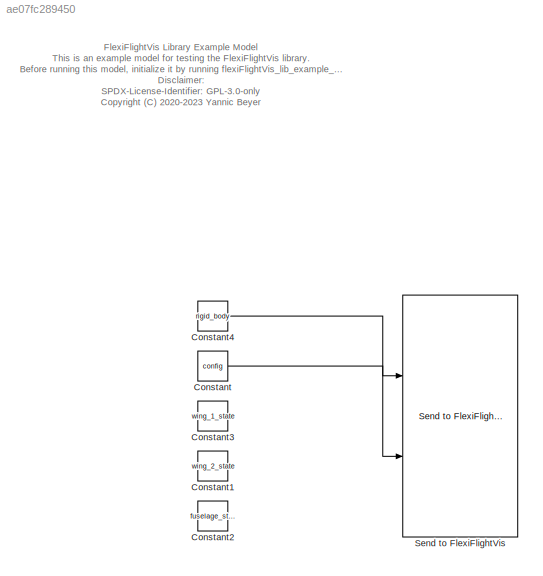
MODEL slx_ae07fc289450
KIND model
CONFIG AbsTol = auto
CONFIG EnableMultiTasking = off
CONFIG FixedStep = 1/60
CONFIG MaxStep = auto
CONFIG MinStep = auto
CONFIG RelTol = 1e-3
CONFIG SampleTimeConstraint = Unconstrained
CONFIG Solver = ode2
CONFIG SolverName = ode2
CONFIG StartTime = 0.0
CONFIG StopTime = 100
BLOCK [Constant] Constant
  OutDataTypeStr = Bus: config_bus
  Value = config
BLOCK [Constant] Constant1
  OutDataTypeStr = Bus: wing_2_state_bus
  Value = wing_2_state
BLOCK [Constant] Constant2
  OutDataTypeStr = Bus: fuselage_state_bus
  Value = fuselage_state
BLOCK [Constant] Constant3
  OutDataTypeStr = Bus: wing_1_state_bus
  Value = wing_1_state
BLOCK [Constant] Constant4
  OutDataTypeStr = Bus: rigid_body_bus
  Value = rigid_body
BLOCK [Reference] Send to FlexiFlightVis  REF=flexiFlightVis_lib/Send to FlexiFlightVis
  Ports = [2]
  SourceBlock = flexiFlightVis_lib/Send to FlexiFlightVis
  SourceProductName = LADAC
ANNOTATION (root): FlexiFlightVis Library Example Model This is an example model for testing the FlexiFlightVis library. Before running this model, initialize it by running flexiFlightVis_lib_example_init. Disclaimer: SPDX-License-Identifier: GPL-3.0-only <copyright redacted>
LINE Constant4:1 -> Send to FlexiFlightVis:1
LINE Constant:1 -> Send to FlexiFlightVis:2
